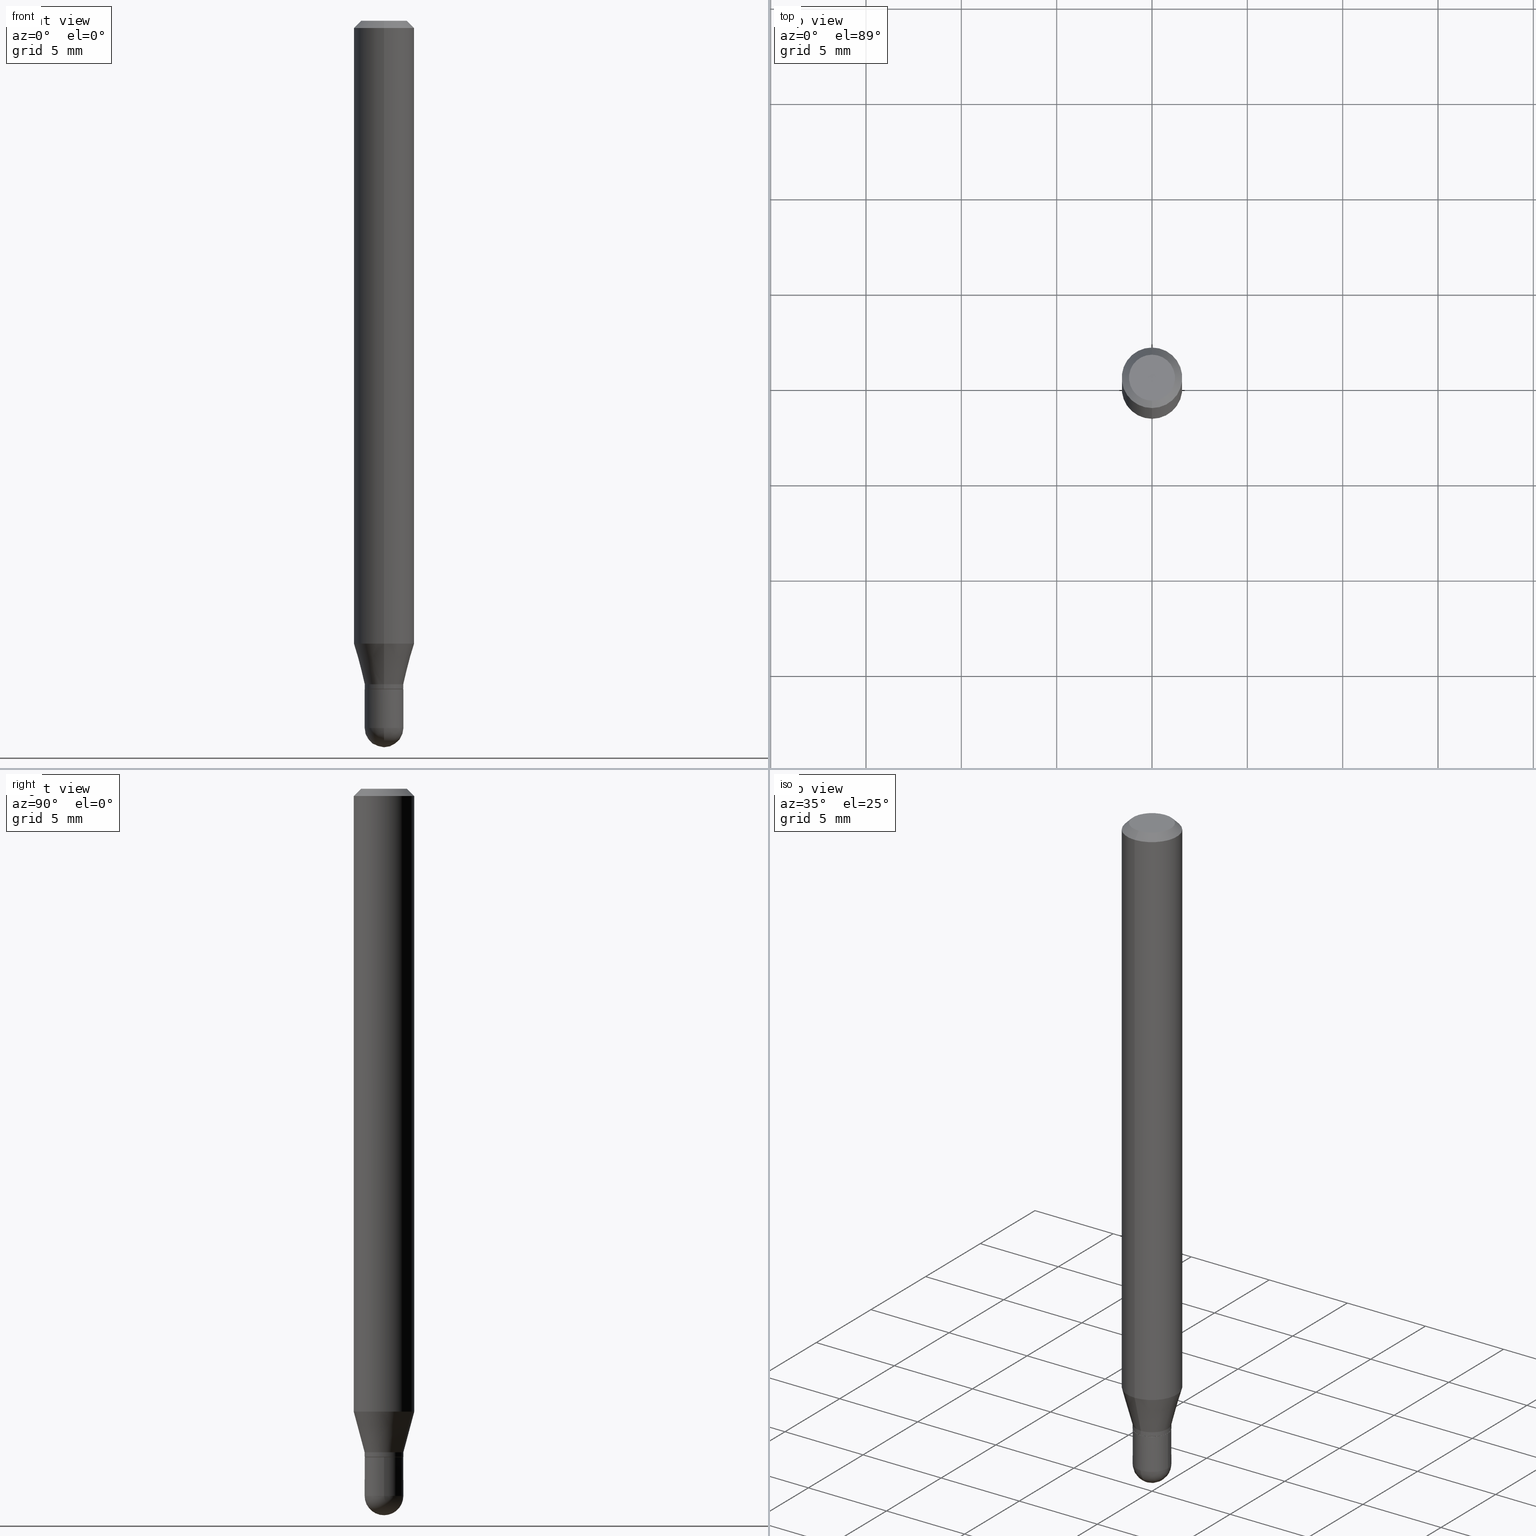
[diagram: canonical four-view strip — front | top / right | iso, engineering-drawing reading convention]
A machine part, canonical four-view strip (front | top / right | iso — engineering-drawing reading convention). The complete STEP part file that produces these views, byte-faithful:
ISO-10303-21;
HEADER;
FILE_DESCRIPTION (( 'STEP AP203' ),
    '1' );
FILE_NAME ('02528.STEP',
    '2024-03-07T20:15:36',
    ( '' ),
    ( '' ),
    'SwSTEP 2.0',
    'SolidWorks 2023',
    '' );
FILE_SCHEMA (( 'CONFIG_CONTROL_DESIGN' ));
ENDSEC;

DATA;
#1 = DIRECTION ( 'NONE',  ( -1.807323732225330534E-15, -0.2588190451025182415, 0.9659258262890689783 ) ) ;
#2 = ORIENTED_EDGE ( 'NONE', *, *, #462, .T. ) ;
#3 = ORIENTED_EDGE ( 'NONE', *, *, #195, .T. ) ;
#4 = COORDINATED_UNIVERSAL_TIME_OFFSET ( 5, 0, .BEHIND. ) ;
#5 = DIRECTION ( 'NONE',  ( -2.445468806185136597E-29, 3.491481338843145583E-15, 1.000000000000000000 ) ) ;
#6 = ORIENTED_EDGE ( 'NONE', *, *, #15, .T. ) ;
#7 = CIRCLE ( 'NONE', #372, 0.04000000000000000083 ) ;
#8 = CARTESIAN_POINT ( 'NONE',  ( 3.566963791873582281E-29, -5.102461341907582659E-15, -1.459999999999999964 ) ) ;
#9 = PERSON_AND_ORGANIZATION ( #234, #237 ) ;
#10 = EDGE_CURVE ( 'NONE', #263, #469, #211, .T. ) ;
#11 = DIRECTION ( 'NONE',  ( -2.445465007158633692E-29, 3.491486779265324816E-15, 1.000000000000000000 ) ) ;
#12 = CARTESIAN_POINT ( 'NONE',  ( 3.374741709878914377E-29, -4.818251755386149216E-15, -1.380000000000000115 ) ) ;
#13 = DIRECTION ( 'NONE',  ( -2.445465007158633692E-29, 3.491486779265324816E-15, 1.000000000000000000 ) ) ;
#14 = ORIENTED_EDGE ( 'NONE', *, *, #42, .F. ) ;
#15 = EDGE_CURVE ( 'NONE', #469, #183, #470, .T. ) ;
#16 = DIRECTION ( 'NONE',  ( -6.982962677686265133E-15, -1.000000000000000000, 6.829619984160670865E-15 ) ) ;
#17 = AXIS2_PLACEMENT_3D ( 'NONE', #445, #217, #355 ) ;
#18 = CONICAL_SURFACE ( 'NONE', #26, 0.06250000000000000000, 0.7853981633974483900 ) ;
#19 = ORIENTED_EDGE ( 'NONE', *, *, #471, .T. ) ;
#20 = PRODUCT_RELATED_PRODUCT_CATEGORY ( 'detail', '', ( #448 ) ) ;
#21 = DIRECTION ( 'NONE',  ( -6.982962677686265922E-15, -1.000000000000000000, 0.000000000000000000 ) ) ;
#22 = ORIENTED_EDGE ( 'NONE', *, *, #200, .F. ) ;
#23 = FACE_OUTER_BOUND ( 'NONE', #510, .T. ) ;
#24 = LINE ( 'NONE', #338, #96 ) ;
#25 = EDGE_CURVE ( 'NONE', #368, #127, #261, .T. ) ;
#26 = AXIS2_PLACEMENT_3D ( 'NONE', #174, #408, #493 ) ;
#27 = DIRECTION ( 'NONE',  ( -6.982962677686265922E-15, -1.000000000000000000, 4.370956789862821150E-15 ) ) ;
#28 = DIRECTION ( 'NONE',  ( 6.982962677686265922E-15, 1.000000000000000000, -3.483106191921935554E-15 ) ) ;
#29 = ADVANCED_BREP_SHAPE_REPRESENTATION ( '02528', ( #198, #360, #294 ), #487 ) ;
#30 = CYLINDRICAL_SURFACE ( 'NONE', #411, 0.06250000000000000000 ) ;
#31 = EDGE_CURVE ( 'NONE', #263, #181, #326, .T. ) ;
#32 =( NAMED_UNIT ( * ) PLANE_ANGLE_UNIT ( ) SI_UNIT ( $, .RADIAN. ) );
#33 = CARTESIAN_POINT ( 'NONE',  ( -0.04000000000000000083, 2.842170943040400803E-16, -1.967574036101962509E-30 ) ) ;
#34 = CIRCLE ( 'NONE', #94, 0.04000000000000000083 ) ;
#35 = DIRECTION ( 'NONE',  ( -6.982962677686265133E-15, -1.000000000000000000, 6.829619984160670865E-15 ) ) ;
#36 = EDGE_CURVE ( 'NONE', #38, #63, #287, .T. ) ;
#37 = VECTOR ( 'NONE', #176, 39.37007874015748143 ) ;
#38 = VERTEX_POINT ( 'NONE', #155 ) ;
#39 = CARTESIAN_POINT ( 'NONE',  ( 0.000000000000000000, 0.000000000000000000, 0.000000000000000000 ) ) ;
#40 = EDGE_LOOP ( 'NONE', ( #123, #308, #55, #478 ) ) ;
#41 = DIRECTION ( 'NONE',  ( -4.937700262164674260E-15, -0.7071067811865632269, 0.7071067811865319186 ) ) ;
#42 = EDGE_CURVE ( 'NONE', #491, #256, #7, .T. ) ;
#43 = ORIENTED_EDGE ( 'NONE', *, *, #377, .T. ) ;
#44 = CC_DESIGN_PERSON_AND_ORGANIZATION_ASSIGNMENT ( #235, #281, ( #465 ) ) ;
#45 = ORIENTED_EDGE ( 'NONE', *, *, #200, .T. ) ;
#46 = VERTEX_POINT ( 'NONE', #152 ) ;
#47 = APPROVAL_ROLE ( '' ) ;
#48 = LINE ( 'NONE', #363, #148 ) ;
#49 = EDGE_CURVE ( 'NONE', #127, #38, #511, .T. ) ;
#50 = DIRECTION ( 'NONE',  ( -6.982962677686265922E-15, -1.000000000000000000, 3.491486779265324816E-15 ) ) ;
#51 = DATE_TIME_ROLE ( 'creation_date' ) ;
#52 = VECTOR ( 'NONE', #161, 39.37007874015748143 ) ;
#53 = AXIS2_PLACEMENT_3D ( 'NONE', #93, #101, #291 ) ;
#54 = CARTESIAN_POINT ( 'NONE',  ( 3.641531520770834203E-16, 0.03999999999999514361, -1.370000000000000329 ) ) ;
#55 = ORIENTED_EDGE ( 'NONE', *, *, #296, .T. ) ;
#56 = CARTESIAN_POINT ( 'NONE',  ( 3.374746952535488593E-29, -4.818244247603541543E-15, -1.380000000000000115 ) ) ;
#57 = UNCERTAINTY_MEASURE_WITH_UNIT (LENGTH_MEASURE( 1.000000000000000082E-05 ), #111, 'distance_accuracy_value', 'NONE');
#58 = EDGE_LOOP ( 'NONE', ( #430, #362, #339, #136 ) ) ;
#59 = CARTESIAN_POINT ( 'NONE',  ( -3.773273898774340269E-16, -0.04749999999999999362, -1.623010672770032212E-16 ) ) ;
#60 = AXIS2_PLACEMENT_3D ( 'NONE', #74, #431, #504 ) ;
#61 = SECURITY_CLASSIFICATION ( '', '', #438 ) ;
#62 = CARTESIAN_POINT ( 'NONE',  ( 0.000000000000000000, 0.000000000000000000, 0.000000000000000000 ) ) ;
#63 = VERTEX_POINT ( 'NONE', #344 ) ;
#64 = DIRECTION ( 'NONE',  ( -2.445465007158633692E-29, 3.491486779265324816E-15, 1.000000000000000000 ) ) ;
#65 = ADVANCED_FACE ( 'NONE', ( #188 ), #253, .T. ) ;
#66 = DIRECTION ( 'NONE',  ( 1.000000000000000000, -7.105427357601001070E-15, 4.926315508542082329E-29 ) ) ;
#67 = AXIS2_PLACEMENT_3D ( 'NONE', #69, #222, #454 ) ;
#68 = EDGE_LOOP ( 'NONE', ( #98, #154, #187, #19 ) ) ;
#69 = CARTESIAN_POINT ( 'NONE',  ( 0.000000000000000000, 0.000000000000000000, 0.000000000000000000 ) ) ;
#70 =( LENGTH_UNIT ( ) NAMED_UNIT ( * ) SI_UNIT ( $, .METRE. ) );
#71 = EDGE_LOOP ( 'NONE', ( #305, #3, #43, #115 ) ) ;
#72 = VECTOR ( 'NONE', #286, 39.37007874015748143 ) ;
#73 = AXIS2_PLACEMENT_3D ( 'NONE', #8, #318, #122 ) ;
#74 = CARTESIAN_POINT ( 'NONE',  ( 0.000000000000000000, 0.000000000000000000, 0.000000000000000000 ) ) ;
#75 = APPROVAL_STATUS ( 'not_yet_approved' ) ;
#76 = DIRECTION ( 'NONE',  ( -6.982962677686265922E-15, -1.000000000000000000, 3.491486779265324816E-15 ) ) ;
#77 = AXIS2_PLACEMENT_3D ( 'NONE', #316, #210, #169 ) ;
#78 = AXIS2_PLACEMENT_3D ( 'NONE', #167, #321, #480 ) ;
#79 = APPROVAL_STATUS ( 'not_yet_approved' ) ;
#80 = ORIENTED_EDGE ( 'NONE', *, *, #258, .F. ) ;
#81 = CARTESIAN_POINT ( 'NONE',  ( 3.374741709878914377E-29, -4.818251755386149216E-15, -1.380000000000000115 ) ) ;
#82 = EDGE_CURVE ( 'NONE', #368, #63, #300, .T. ) ;
#83 = DIRECTION ( 'NONE',  ( -2.445465007158633411E-29, 3.491486779265324816E-15, 1.000000000000000000 ) ) ;
#84 = EDGE_CURVE ( 'NONE', #375, #102, #380, .T. ) ;
#85 = DATE_AND_TIME ( #512, #303 ) ;
#86 = DIRECTION ( 'NONE',  ( -2.445465007158633692E-29, 3.491486779265324816E-15, 1.000000000000000000 ) ) ;
#87 = DATE_AND_TIME ( #479, #254 ) ;
#88 = AXIS2_PLACEMENT_3D ( 'NONE', #39, #156, #423 ) ;
#89 = CARTESIAN_POINT ( 'NONE',  ( -2.758270257685737501E-16, -0.03950000000000481598, -1.379999999999999671 ) ) ;
#90 = ORIENTED_EDGE ( 'NONE', *, *, #84, .T. ) ;
#91 = DIRECTION ( 'NONE',  ( -1.000000000000000000, 6.982962677686265922E-15, -4.876176775795935793E-29 ) ) ;
#92 = DIRECTION ( 'NONE',  ( -2.445468806185136877E-29, 3.491481338843145188E-15, 1.000000000000000000 ) ) ;
#93 = CARTESIAN_POINT ( 'NONE',  ( 3.374741709878914377E-29, -4.818251755386149216E-15, -1.380000000000000115 ) ) ;
#94 = AXIS2_PLACEMENT_3D ( 'NONE', #56, #134, #171 ) ;
#95 = CARTESIAN_POINT ( 'NONE',  ( -0.04000000000000000083, -4.673686406853227813E-15, -1.460000000000000187 ) ) ;
#96 = VECTOR ( 'NONE', #419, 39.37007874015748143 ) ;
#97 = APPROVAL_PERSON_ORGANIZATION ( #9, #218, #213 ) ;
#98 = ORIENTED_EDGE ( 'NONE', *, *, #195, .F. ) ;
#99 = FACE_OUTER_BOUND ( 'NONE', #58, .T. ) ;
#100 = ORIENTED_EDGE ( 'NONE', *, *, #429, .F. ) ;
#101 = DIRECTION ( 'NONE',  ( -2.445465007158633692E-29, 3.491486779265324816E-15, 1.000000000000000000 ) ) ;
#102 = VERTEX_POINT ( 'NONE', #179 ) ;
#103 = EDGE_CURVE ( 'NONE', #256, #117, #457, .T. ) ;
#104 = CARTESIAN_POINT ( 'NONE',  ( 3.350287059807328626E-29, -4.783336887593495309E-15, -1.370000000000000107 ) ) ;
#105 = CARTESIAN_POINT ( 'NONE',  ( 3.570384457030299835E-29, -5.097562754710993947E-15, -1.460000000000000187 ) ) ;
#106 = VECTOR ( 'NONE', #229, 39.37007874015748143 ) ;
#107 = CIRCLE ( 'NONE', #436, 0.06250000000000000000 ) ;
#108 = CARTESIAN_POINT ( 'NONE',  ( 3.316907271900976096E-16, 0.04749999999999999362, -3.299189666611560624E-16 ) ) ;
#109 = APPROVAL ( #482, 'UNSPECIFIED' ) ;
#110 = ORIENTED_EDGE ( 'NONE', *, *, #177, .T. ) ;
#111 =( CONVERSION_BASED_UNIT ( 'INCH', #387 ) LENGTH_UNIT ( ) NAMED_UNIT ( #329 ) );
#112 = AXIS2_PLACEMENT_3D ( 'NONE', #245, #476, #483 ) ;
#113 = ADVANCED_FACE ( 'NONE', ( #246 ), #126, .T. ) ;
#114 = AXIS2_PLACEMENT_3D ( 'NONE', #62, #178, #391 ) ;
#115 = ORIENTED_EDGE ( 'NONE', *, *, #214, .F. ) ;
#116 = DIRECTION ( 'NONE',  ( -6.982962677686265922E-15, -1.000000000000000000, 3.483106191921935554E-15 ) ) ;
#117 = VERTEX_POINT ( 'NONE', #119 ) ;
#118 = ORIENTED_EDGE ( 'NONE', *, *, #324, .F. ) ;
#119 = CARTESIAN_POINT ( 'NONE',  ( 2.842170943040764665E-16, 0.03999999999999499789, -1.460000000000000631 ) ) ;
#120 = AXIS2_PLACEMENT_3D ( 'NONE', #405, #11, #130 ) ;
#121 = ADVANCED_FACE ( 'NONE', ( #215 ), #182, .T. ) ;
#122 = DIRECTION ( 'NONE',  ( -6.982962677686265133E-15, -1.000000000000000000, 6.829619984160622745E-15 ) ) ;
#123 = ORIENTED_EDGE ( 'NONE', *, *, #462, .F. ) ;
#124 = PERSON_AND_ORGANIZATION_ROLE ( 'creator' ) ;
#125 = ORIENTED_EDGE ( 'NONE', *, *, #336, .T. ) ;
#126 = SPHERICAL_SURFACE ( 'NONE', #17, 0.04000000000000020206 ) ;
#127 = VERTEX_POINT ( 'NONE', #89 ) ;
#128 = EDGE_CURVE ( 'NONE', #349, #194, #301, .T. ) ;
#129 = PERSON_AND_ORGANIZATION ( #234, #237 ) ;
#130 = DIRECTION ( 'NONE',  ( -6.982962677686265133E-15, -1.000000000000000000, 6.829619984160670865E-15 ) ) ;
#131 = ORIENTED_EDGE ( 'NONE', *, *, #49, .T. ) ;
#132 = CALENDAR_DATE ( 2024, 7, 3 ) ;
#133 = AXIS2_PLACEMENT_3D ( 'NONE', #374, #370, #27 ) ;
#134 = DIRECTION ( 'NONE',  ( -2.445468806185136597E-29, 3.491481338843145583E-15, 1.000000000000000000 ) ) ;
#135 = CARTESIAN_POINT ( 'NONE',  ( 3.374741709878914377E-29, -4.818251755386149216E-15, -1.380000000000000115 ) ) ;
#136 = ORIENTED_EDGE ( 'NONE', *, *, #15, .F. ) ;
#137 = CARTESIAN_POINT ( 'NONE',  ( 2.824407374646732069E-16, 0.03949999999999518480, -1.380000000000000338 ) ) ;
#138 = ORIENTED_EDGE ( 'NONE', *, *, #49, .F. ) ;
#139 = DIRECTION ( 'NONE',  ( -6.982962677686265922E-15, -1.000000000000000000, 4.370956789862821150E-15 ) ) ;
#140 = CIRCLE ( 'NONE', #382, 0.04000000000000000083 ) ;
#141 = CARTESIAN_POINT ( 'NONE',  ( 8.024712458788022514E-45, -1.145719827323074954E-30, -3.281466892921061726E-16 ) ) ;
#142 = DIRECTION ( 'NONE',  ( -6.982962677686265922E-15, -1.000000000000000000, 3.483106191921935554E-15 ) ) ;
#143 = EDGE_CURVE ( 'NONE', #469, #263, #435, .T. ) ;
#144 = CYLINDRICAL_SURFACE ( 'NONE', #244, 0.03999999999999992450 ) ;
#145 = EDGE_LOOP ( 'NONE', ( #364, #381, #131, #100 ) ) ;
#146 = DIRECTION ( 'NONE',  ( -2.445468806185136597E-29, 3.491481338843145583E-15, 1.000000000000000000 ) ) ;
#147 = DIRECTION ( 'NONE',  ( 2.445465007158633692E-29, -3.491486779265324816E-15, -1.000000000000000000 ) ) ;
#148 = VECTOR ( 'NONE', #358, 39.37007874015748143 ) ;
#149 = CIRCLE ( 'NONE', #425, 0.04749999999999999362 ) ;
#150 = LOCAL_TIME ( 15, 15, 36.00000000000000000, #242 ) ;
#151 = CARTESIAN_POINT ( 'NONE',  ( -2.793185071074166094E-16, -0.04000000000000470540, -1.369999999999999885 ) ) ;
#152 = CARTESIAN_POINT ( 'NONE',  ( 3.663072211542629124E-29, -5.244569889059603611E-15, -1.500000000000000222 ) ) ;
#153 = EDGE_CURVE ( 'NONE', #117, #375, #446, .T. ) ;
#154 = ORIENTED_EDGE ( 'NONE', *, *, #289, .F. ) ;
#155 = CARTESIAN_POINT ( 'NONE',  ( -2.793185071074153768E-16, -0.04000000000000460132, -1.379499999999999948 ) ) ;
#156 = DIRECTION ( 'NONE',  ( -2.445465007158633692E-29, 3.491486779265324816E-15, 1.000000000000000000 ) ) ;
#157 = ORIENTED_EDGE ( 'NONE', *, *, #304, .T. ) ;
#158 = AXIS2_PLACEMENT_3D ( 'NONE', #416, #251, #21 ) ;
#159 = FACE_OUTER_BOUND ( 'NONE', #484, .T. ) ;
#160 = CC_DESIGN_PERSON_AND_ORGANIZATION_ASSIGNMENT ( #306, #463, ( #448 ) ) ;
#161 = DIRECTION ( 'NONE',  ( 4.937700262164548042E-15, 0.7071067811865451302, -0.7071067811865499042 ) ) ;
#162 = ORIENTED_EDGE ( 'NONE', *, *, #324, .T. ) ;
#163 = SHAPE_DEFINITION_REPRESENTATION ( #314, #29 ) ;
#164 = DIRECTION ( 'NONE',  ( 2.438088387897960049E-29, -3.491481338843145188E-15, -1.000000000000000000 ) ) ;
#165 = DIRECTION ( 'NONE',  ( -2.445468806185136597E-29, 3.491481338843145583E-15, 1.000000000000000000 ) ) ;
#166 = AXIS2_PLACEMENT_3D ( 'NONE', #108, #228, #272 ) ;
#167 = CARTESIAN_POINT ( 'NONE',  ( 3.374746952535488593E-29, -4.818244247603541543E-15, -1.380000000000000115 ) ) ;
#168 = PERSON_AND_ORGANIZATION_ROLE ( 'classification_officer' ) ;
#169 = DIRECTION ( 'NONE',  ( 1.000000000000000000, -6.982962677686259611E-15, 0.000000000000000000 ) ) ;
#170 = CALENDAR_DATE ( 2024, 7, 3 ) ;
#171 = DIRECTION ( 'NONE',  ( 1.000000000000000000, -6.982962677686259611E-15, 0.000000000000000000 ) ) ;
#172 = DIRECTION ( 'NONE',  ( -6.982962677686265133E-15, -1.000000000000000000, 6.916070870036109544E-15 ) ) ;
#173 = EDGE_LOOP ( 'NONE', ( #341, #451 ) ) ;
#174 = CARTESIAN_POINT ( 'NONE',  ( 3.668197510738031270E-31, -5.237230168898101436E-17, -0.01500000000000032904 ) ) ;
#175 = EDGE_CURVE ( 'NONE', #256, #180, #48, .T. ) ;
#176 = DIRECTION ( 'NONE',  ( -2.445465007158633692E-29, 3.491486779265324816E-15, 1.000000000000000000 ) ) ;
#177 = EDGE_CURVE ( 'NONE', #180, #102, #34, .T. ) ;
#178 = DIRECTION ( 'NONE',  ( -2.445468806185136597E-29, 3.491481338843145583E-15, 1.000000000000000000 ) ) ;
#179 = CARTESIAN_POINT ( 'NONE',  ( -0.04000000000000000083, -4.673686406853227813E-15, -1.380000000000000115 ) ) ;
#180 = VERTEX_POINT ( 'NONE', #447 ) ;
#181 = VERTEX_POINT ( 'NONE', #325 ) ;
#182 = CONICAL_SURFACE ( 'NONE', #424, 0.03950000000000000039, 0.7853981633974739252 ) ;
#183 = VERTEX_POINT ( 'NONE', #485 ) ;
#184 = DIRECTION ( 'NONE',  ( -2.445465007158633692E-29, 3.491486779265324816E-15, 1.000000000000000000 ) ) ;
#185 = ORIENTED_EDGE ( 'NONE', *, *, #377, .F. ) ;
#186 = DIRECTION ( 'NONE',  ( -6.982962677686266711E-15, -1.000000000000000000, 3.491486779265325210E-15 ) ) ;
#187 = ORIENTED_EDGE ( 'NONE', *, *, #214, .T. ) ;
#188 = FACE_OUTER_BOUND ( 'NONE', #68, .T. ) ;
#189 = CARTESIAN_POINT ( 'NONE',  ( 2.842170943040394886E-16, 0.03999999999999992450, -1.396594711706127185E-16 ) ) ;
#190 = CONICAL_SURFACE ( 'NONE', #383, 0.03999999999999992450, 0.2617993877991502960 ) ;
#191 = AXIS2_PLACEMENT_3D ( 'NONE', #219, #293, #452 ) ;
#192 = APPROVAL_PERSON_ORGANIZATION ( #322, #109, #47 ) ;
#193 =( NAMED_UNIT ( * ) SI_UNIT ( $, .STERADIAN. ) SOLID_ANGLE_UNIT ( ) );
#194 = VERTEX_POINT ( 'NONE', #277 ) ;
#195 = EDGE_CURVE ( 'NONE', #349, #420, #216, .T. ) ;
#196 = FACE_OUTER_BOUND ( 'NONE', #40, .T. ) ;
#197 = APPLICATION_CONTEXT ( 'configuration controlled 3d designs of mechanical parts and assemblies' ) ;
#198 = MANIFOLD_SOLID_BREP ( 'Body-Move/Copy2[1]', #310 ) ;
#199 = APPROVAL_ROLE ( '' ) ;
#200 = EDGE_CURVE ( 'NONE', #375, #491, #140, .T. ) ;
#201 = AXIS2_PLACEMENT_3D ( 'NONE', #135, #13, #172 ) ;
#202 = CIRCLE ( 'NONE', #158, 0.04000000000000020206 ) ;
#203 = ORIENTED_EDGE ( 'NONE', *, *, #359, .T. ) ;
#204 = PERSON_AND_ORGANIZATION_ROLE ( 'creator' ) ;
#205 = ADVANCED_FACE ( 'NONE', ( #275 ), #290, .F. ) ;
#206 = ORIENTED_EDGE ( 'NONE', *, *, #296, .F. ) ;
#207 = VERTEX_POINT ( 'NONE', #323 ) ;
#208 = DATE_AND_TIME ( #132, #150 ) ;
#209 = DIRECTION ( 'NONE',  ( 1.000000000000000000, -6.982962677686259611E-15, 0.000000000000000000 ) ) ;
#210 = DIRECTION ( 'NONE',  ( -2.445468806185136597E-29, 3.491481338843145583E-15, 1.000000000000000000 ) ) ;
#211 = CIRCLE ( 'NONE', #410, 0.03999999999999992450 ) ;
#212 = CONICAL_SURFACE ( 'NONE', #402, 0.03999999999999992450, 0.2617993877991502960 ) ;
#213 = APPROVAL_ROLE ( '' ) ;
#214 = EDGE_CURVE ( 'NONE', #194, #207, #249, .T. ) ;
#215 = FACE_OUTER_BOUND ( 'NONE', #145, .T. ) ;
#216 = LINE ( 'NONE', #282, #268 ) ;
#217 = DIRECTION ( 'NONE',  ( 1.000000000000000000, -6.982962677686265133E-15, 4.883557194083112901E-29 ) ) ;
#218 = APPROVAL ( #79, 'UNSPECIFIED' ) ;
#219 = CARTESIAN_POINT ( 'NONE',  ( 3.373518977375335454E-29, -4.816506011996516797E-15, -1.379500000000000171 ) ) ;
#220 = ORIENTED_EDGE ( 'NONE', *, *, #36, .F. ) ;
#221 = ADVANCED_FACE ( 'NONE', ( #472 ), #397, .T. ) ;
#222 = DIRECTION ( 'NONE',  ( -2.445468806185136597E-29, 3.491481338843145583E-15, 1.000000000000000000 ) ) ;
#223 = LINE ( 'NONE', #225, #276 ) ;
#224 = VECTOR ( 'NONE', #1, 39.37007874015748143 ) ;
#225 = CARTESIAN_POINT ( 'NONE',  ( 4.440892098500625669E-16, 0.06250000000000000000, -2.182179237040828010E-16 ) ) ;
#226 = CIRCLE ( 'NONE', #191, 0.03999999999999992450 ) ;
#227 = CARTESIAN_POINT ( 'NONE',  ( 0.000000000000000000, 0.000000000000000000, 0.000000000000000000 ) ) ;
#228 = DIRECTION ( 'NONE',  ( 2.445465007158633411E-29, -3.491486779265324816E-15, -1.000000000000000000 ) ) ;
#229 = DIRECTION ( 'NONE',  ( 5.024295867788190974E-15, 0.7071067811865681119, 0.7071067811865270336 ) ) ;
#230 = ADVANCED_FACE ( 'NONE', ( #240 ), #437, .F. ) ;
#231 = ORIENTED_EDGE ( 'NONE', *, *, #36, .T. ) ;
#232 = DIRECTION ( 'NONE',  ( -2.445465007158633692E-29, 3.491486779265324816E-15, 1.000000000000000000 ) ) ;
#233 = APPLICATION_PROTOCOL_DEFINITION ( 'international standard', 'config_control_design', 1994, #441 ) ;
#234 = PERSON ( 'UNSPECIFIED', 'UNSPECIFIED', 'UNSPECIFIED', ('UNSPECIFIED'), ('UNSPECIFIED'), ('UNSPECIFIED') ) ;
#235 = PERSON_AND_ORGANIZATION ( #234, #237 ) ;
#236 = DIRECTION ( 'NONE',  ( -2.445465007158633692E-29, 3.491486779265324816E-15, 1.000000000000000000 ) ) ;
#237 = ORGANIZATION ( 'UNSPECIFIED', 'UNSPECIFIED', '' ) ;
#238 = COORDINATED_UNIVERSAL_TIME_OFFSET ( 5, 0, .BEHIND. ) ;
#239 = CARTESIAN_POINT ( 'NONE',  ( 3.570384457030299835E-29, -5.097562754710993947E-15, -1.460000000000000187 ) ) ;
#240 = FACE_OUTER_BOUND ( 'NONE', #313, .T. ) ;
#241 = EDGE_CURVE ( 'NONE', #102, #180, #288, .T. ) ;
#242 = COORDINATED_UNIVERSAL_TIME_OFFSET ( 5, 0, .BEHIND. ) ;
#243 = CARTESIAN_POINT ( 'NONE',  ( 3.374741709878914377E-29, -4.818251755386149216E-15, -1.380000000000000115 ) ) ;
#244 = AXIS2_PLACEMENT_3D ( 'NONE', #227, #297, #259 ) ;
#245 = CARTESIAN_POINT ( 'NONE',  ( 8.024712458788022514E-45, -1.145719827323074954E-30, -3.281466892921061726E-16 ) ) ;
#246 = FACE_OUTER_BOUND ( 'NONE', #442, .T. ) ;
#247 = ORIENTED_EDGE ( 'NONE', *, *, #471, .F. ) ;
#248 = EDGE_LOOP ( 'NONE', ( #343, #45, #428, #315, #388 ) ) ;
#249 = LINE ( 'NONE', #407, #52 ) ;
#250 = APPROVAL ( #75, 'UNSPECIFIED' ) ;
#251 = DIRECTION ( 'NONE',  ( -1.000000000000000000, 6.982962677686265922E-15, -4.883557194083112340E-29 ) ) ;
#252 = ORIENTED_EDGE ( 'NONE', *, *, #427, .T. ) ;
#253 = CONICAL_SURFACE ( 'NONE', #393, 0.06250000000000000000, 0.7853981633974483900 ) ;
#254 = LOCAL_TIME ( 15, 15, 36.00000000000000000, #238 ) ;
#255 = FACE_OUTER_BOUND ( 'NONE', #502, .T. ) ;
#256 = VERTEX_POINT ( 'NONE', #440 ) ;
#257 = CARTESIAN_POINT ( 'NONE',  ( 3.566963791873582281E-29, -5.102461341907582659E-15, -1.459999999999999964 ) ) ;
#258 = EDGE_CURVE ( 'NONE', #127, #368, #365, .T. ) ;
#259 = DIRECTION ( 'NONE',  ( -6.982962677686265133E-15, -1.000000000000000000, 3.491486779265324421E-15 ) ) ;
#260 = CARTESIAN_POINT ( 'NONE',  ( 3.570384457030299835E-29, -5.097562754710993947E-15, -1.460000000000000187 ) ) ;
#261 = CIRCLE ( 'NONE', #201, 0.03950000000000000039 ) ;
#262 = DIRECTION ( 'NONE',  ( 7.105427357601000281E-15, 1.000000000000000000, 0.000000000000000000 ) ) ;
#263 = VERTEX_POINT ( 'NONE', #54 ) ;
#264 = AXIS2_PLACEMENT_3D ( 'NONE', #243, #86, #401 ) ;
#265 = CARTESIAN_POINT ( 'NONE',  ( 0.000000000000000000, 0.000000000000000000, 0.000000000000000000 ) ) ;
#266 = DIRECTION ( 'NONE',  ( 1.000000000000000000, 0.000000000000000000, 0.000000000000000000 ) ) ;
#267 = DIRECTION ( 'NONE',  ( -2.445465007158633692E-29, 3.491486779265324816E-15, 1.000000000000000000 ) ) ;
#268 = VECTOR ( 'NONE', #353, 39.37007874015748143 ) ;
#269 = CIRCLE ( 'NONE', #334, 0.06250000000000000000 ) ;
#270 = ADVANCED_FACE ( 'NONE', ( #414 ), #190, .T. ) ;
#271 = PERSON_AND_ORGANIZATION ( #234, #237 ) ;
#272 = DIRECTION ( 'NONE',  ( 6.982962677686265922E-15, 1.000000000000000000, -3.491486779265324816E-15 ) ) ;
#273 = ORIENTED_EDGE ( 'NONE', *, *, #143, .F. ) ;
#274 = ORIENTED_EDGE ( 'NONE', *, *, #175, .F. ) ;
#275 = FACE_OUTER_BOUND ( 'NONE', #464, .T. ) ;
#276 = VECTOR ( 'NONE', #456, 39.37007874015748143 ) ;
#277 = CARTESIAN_POINT ( 'NONE',  ( 3.840629472727447874E-16, 0.04749999999999999362, -4.939923113072091241E-16 ) ) ;
#278 = ADVANCED_FACE ( 'NONE', ( #495 ), #18, .T. ) ;
#279 = DIRECTION ( 'NONE',  ( -2.445465007158633692E-29, 3.491486779265324816E-15, 1.000000000000000000 ) ) ;
#280 = EDGE_LOOP ( 'NONE', ( #231, #2, #273, #206 ) ) ;
#281 = PERSON_AND_ORGANIZATION_ROLE ( 'design_supplier' ) ;
#282 = CARTESIAN_POINT ( 'NONE',  ( -4.287811248607203282E-16, -0.06250000000000005551, -0.01500000000000011047 ) ) ;
#283 = EDGE_LOOP ( 'NONE', ( #460, #162, #409, #247 ) ) ;
#284 = CALENDAR_DATE ( 2024, 7, 3 ) ;
#285 = DIRECTION ( 'NONE',  ( -6.982962677686265133E-15, -1.000000000000000000, 6.916070870036109544E-15 ) ) ;
#286 = DIRECTION ( 'NONE',  ( 1.839019923739600710E-15, 0.2588190451025250138, 0.9659258262890670910 ) ) ;
#287 = CIRCLE ( 'NONE', #474, 0.03999999999999992450 ) ;
#288 = CIRCLE ( 'NONE', #78, 0.04000000000000000083 ) ;
#289 = EDGE_CURVE ( 'NONE', #194, #349, #149, .T. ) ;
#290 = PLANE ( 'NONE',  #496 ) ;
#291 = DIRECTION ( 'NONE',  ( -6.982962677686265133E-15, -1.000000000000000000, 6.916070870036109544E-15 ) ) ;
#292 = DIRECTION ( 'NONE',  ( 1.000000000000000000, -6.982962677686259611E-15, 0.000000000000000000 ) ) ;
#293 = DIRECTION ( 'NONE',  ( -2.445465007158633692E-29, 3.491486779265324816E-15, 1.000000000000000000 ) ) ;
#294 = AXIS2_PLACEMENT_3D ( 'NONE', #461, #506, #266 ) ;
#295 = FACE_OUTER_BOUND ( 'NONE', #248, .T. ) ;
#296 = EDGE_CURVE ( 'NONE', #38, #469, #366, .T. ) ;
#297 = DIRECTION ( 'NONE',  ( -2.445465007158633692E-29, 3.491486779265324816E-15, 1.000000000000000000 ) ) ;
#298 = CARTESIAN_POINT ( 'NONE',  ( 3.668197510738031270E-31, -5.237230168898101436E-17, -0.01500000000000032904 ) ) ;
#299 = CARTESIAN_POINT ( 'NONE',  ( 3.350287059807328626E-29, -4.783336887593495309E-15, -1.370000000000000107 ) ) ;
#300 = LINE ( 'NONE', #459, #106 ) ;
#301 = CIRCLE ( 'NONE', #112, 0.04749999999999999362 ) ;
#302 = CYLINDRICAL_SURFACE ( 'NONE', #60, 0.03999999999999992450 ) ;
#303 = LOCAL_TIME ( 15, 15, 36.00000000000000000, #347 ) ;
#304 = EDGE_CURVE ( 'NONE', #181, #207, #223, .T. ) ;
#305 = ORIENTED_EDGE ( 'NONE', *, *, #128, .F. ) ;
#306 = PERSON_AND_ORGANIZATION ( #234, #237 ) ;
#307 = CARTESIAN_POINT ( 'NONE',  ( 3.373518977375335454E-29, -4.816506011996516797E-15, -1.379500000000000171 ) ) ;
#308 = ORIENTED_EDGE ( 'NONE', *, *, #429, .T. ) ;
#309 = CARTESIAN_POINT ( 'NONE',  ( 3.668197510738031270E-31, -5.237230168898101436E-17, -0.01500000000000032904 ) ) ;
#310 = CLOSED_SHELL ( 'NONE', ( #432, #221, #205, #113, #345 ) ) ;
#311 = EDGE_LOOP ( 'NONE', ( #317, #125, #367, #14 ) ) ;
#312 = CC_DESIGN_PERSON_AND_ORGANIZATION_ASSIGNMENT ( #129, #168, ( #61 ) ) ;
#313 = EDGE_LOOP ( 'NONE', ( #80, #385 ) ) ;
#314 = PRODUCT_DEFINITION_SHAPE ( 'NONE', 'NONE',  #395 ) ;
#315 = ORIENTED_EDGE ( 'NONE', *, *, #175, .T. ) ;
#316 = CARTESIAN_POINT ( 'NONE',  ( 3.570384457030299835E-29, -5.097562754710993947E-15, -1.460000000000000187 ) ) ;
#317 = ORIENTED_EDGE ( 'NONE', *, *, #427, .F. ) ;
#318 = DIRECTION ( 'NONE',  ( 1.000000000000000000, -6.982962677686265133E-15, 4.883557194083112901E-29 ) ) ;
#319 = CLOSED_SHELL ( 'NONE', ( #398, #415, #278, #443, #332, #270, #492, #65, #509, #230, #121, #481 ) ) ;
#320 = CIRCLE ( 'NONE', #497, 0.04000000000000020206 ) ;
#321 = DIRECTION ( 'NONE',  ( -2.445468806185136597E-29, 3.491481338843145583E-15, 1.000000000000000000 ) ) ;
#322 = PERSON_AND_ORGANIZATION ( #234, #237 ) ;
#323 = CARTESIAN_POINT ( 'NONE',  ( 4.440892098500941706E-16, 0.06249999999999995143, -0.01500000000000054588 ) ) ;
#324 = EDGE_CURVE ( 'NONE', #181, #183, #107, .T. ) ;
#325 = CARTESIAN_POINT ( 'NONE',  ( 4.440892098500941706E-16, 0.06249999999999554523, -1.286028856829700695 ) ) ;
#326 = LINE ( 'NONE', #486, #72 ) ;
#327 = VECTOR ( 'NONE', #41, 39.37007874015748143 ) ;
#328 = CARTESIAN_POINT ( 'NONE',  ( 3.144938567573252550E-29, -4.490152751374598904E-15, -1.286028856829700473 ) ) ;
#329 = DIMENSIONAL_EXPONENTS ( 1.000000000000000000, 0.000000000000000000, 0.000000000000000000, 0.000000000000000000, 0.000000000000000000, 0.000000000000000000, 0.000000000000000000 ) ;
#330 = CARTESIAN_POINT ( 'NONE',  ( -4.364351673553912750E-16, -0.06250000000000005551, -0.01500000000000011047 ) ) ;
#331 = CARTESIAN_POINT ( 'NONE',  ( -2.793185071074500866E-16, -0.03999999999999992450, 1.396594711706127185E-16 ) ) ;
#332 = ADVANCED_FACE ( 'NONE', ( #99 ), #212, .T. ) ;
#333 = VECTOR ( 'NONE', #92, 39.37007874015748143 ) ;
#334 = AXIS2_PLACEMENT_3D ( 'NONE', #335, #498, #142 ) ;
#335 = CARTESIAN_POINT ( 'NONE',  ( 3.668197510738031270E-31, -5.237230168898101436E-17, -0.01500000000000032904 ) ) ;
#336 = EDGE_CURVE ( 'NONE', #46, #117, #320, .T. ) ;
#337 = CARTESIAN_POINT ( 'NONE',  ( 3.350287059807328626E-29, -4.783336887593495309E-15, -1.370000000000000107 ) ) ;
#338 = CARTESIAN_POINT ( 'NONE',  ( -4.364351673553916201E-16, -0.06250000000000000000, 2.182179237040828010E-16 ) ) ;
#339 = ORIENTED_EDGE ( 'NONE', *, *, #359, .F. ) ;
#340 = DIRECTION ( 'NONE',  ( -2.445465007158633692E-29, 3.491486779265324816E-15, 1.000000000000000000 ) ) ;
#341 = ORIENTED_EDGE ( 'NONE', *, *, #289, .T. ) ;
#342 = CARTESIAN_POINT ( 'NONE',  ( -2.793185071074156233E-16, -0.04000000000000520500, -1.459999999999999964 ) ) ;
#343 = ORIENTED_EDGE ( 'NONE', *, *, #84, .F. ) ;
#344 = CARTESIAN_POINT ( 'NONE',  ( 2.842170943040741492E-16, 0.03999999999999524769, -1.379500000000000393 ) ) ;
#345 = ADVANCED_FACE ( 'NONE', ( #295 ), #490, .T. ) ;
#346 = DIRECTION ( 'NONE',  ( 1.000000000000000000, -6.982962677686259611E-15, 0.000000000000000000 ) ) ;
#347 = COORDINATED_UNIVERSAL_TIME_OFFSET ( 5, 0, .BEHIND. ) ;
#348 = LOCAL_TIME ( 15, 15, 36.00000000000000000, #396 ) ;
#349 = VERTEX_POINT ( 'NONE', #59 ) ;
#350 = APPROVAL_DATE_TIME ( #444, #218 ) ;
#351 = CC_DESIGN_DATE_AND_TIME_ASSIGNMENT ( #87, #51, ( #395 ) ) ;
#352 = PERSON_AND_ORGANIZATION ( #234, #237 ) ;
#353 = DIRECTION ( 'NONE',  ( -4.851104656540964275E-15, -0.7071067811865500152, -0.7071067811865450192 ) ) ;
#354 = DATE_TIME_ROLE ( 'classification_date' ) ;
#355 = DIRECTION ( 'NONE',  ( -6.982962677686265133E-15, -1.000000000000000000, 6.829619984160622745E-15 ) ) ;
#356 = AXIS2_PLACEMENT_3D ( 'NONE', #105, #165, #292 ) ;
#357 = APPROVAL_DATE_TIME ( #85, #250 ) ;
#358 = DIRECTION ( 'NONE',  ( -2.445468806185136877E-29, 3.491481338843145188E-15, 1.000000000000000000 ) ) ;
#359 = EDGE_CURVE ( 'NONE', #183, #181, #373, .T. ) ;
#360 = MANIFOLD_SOLID_BREP ( 'Body-Move/Copy2[2]', #319 ) ;
#361 = DIRECTION ( 'NONE',  ( -2.445465007158633692E-29, 3.491486779265324816E-15, 1.000000000000000000 ) ) ;
#362 = ORIENTED_EDGE ( 'NONE', *, *, #31, .T. ) ;
#363 = CARTESIAN_POINT ( 'NONE',  ( 0.04000000000000000083, -2.793185071074506290E-16, 1.950470710318374387E-30 ) ) ;
#364 = ORIENTED_EDGE ( 'NONE', *, *, #82, .F. ) ;
#365 = CIRCLE ( 'NONE', #264, 0.03950000000000000039 ) ;
#366 = LINE ( 'NONE', #331, #37 ) ;
#367 = ORIENTED_EDGE ( 'NONE', *, *, #103, .F. ) ;
#368 = VERTEX_POINT ( 'NONE', #137 ) ;
#369 = EDGE_CURVE ( 'NONE', #183, #420, #24, .T. ) ;
#370 = DIRECTION ( 'NONE',  ( -2.445465007158633692E-29, 3.491486779265324816E-15, 1.000000000000000000 ) ) ;
#371 = DIRECTION ( 'NONE',  ( -2.445465007158633692E-29, 3.491486779265324816E-15, 1.000000000000000000 ) ) ;
#372 = AXIS2_PLACEMENT_3D ( 'NONE', #260, #146, #346 ) ;
#373 = CIRCLE ( 'NONE', #133, 0.06250000000000000000 ) ;
#374 = CARTESIAN_POINT ( 'NONE',  ( 3.144938567573252550E-29, -4.490152751374598904E-15, -1.286028856829700473 ) ) ;
#375 = VERTEX_POINT ( 'NONE', #95 ) ;
#376 = ORIENTED_EDGE ( 'NONE', *, *, #153, .T. ) ;
#377 = EDGE_CURVE ( 'NONE', #420, #207, #269, .T. ) ;
#378 = CC_DESIGN_DATE_AND_TIME_ASSIGNMENT ( #208, #354, ( #61 ) ) ;
#379 = CYLINDRICAL_SURFACE ( 'NONE', #88, 0.06250000000000000000 ) ;
#380 = LINE ( 'NONE', #33, #333 ) ;
#381 = ORIENTED_EDGE ( 'NONE', *, *, #25, .T. ) ;
#382 = AXIS2_PLACEMENT_3D ( 'NONE', #239, #5, #209 ) ;
#383 = AXIS2_PLACEMENT_3D ( 'NONE', #299, #371, #449 ) ;
#384 = MECHANICAL_CONTEXT ( 'NONE', #441, 'mechanical' ) ;
#385 = ORIENTED_EDGE ( 'NONE', *, *, #25, .F. ) ;
#386 = CARTESIAN_POINT ( 'NONE',  ( -2.758270257685737501E-16, -0.03950000000000481598, -1.379999999999999671 ) ) ;
#387 = LENGTH_MEASURE_WITH_UNIT ( LENGTH_MEASURE( 0.02539999999999999897 ), #70 );
#388 = ORIENTED_EDGE ( 'NONE', *, *, #241, .F. ) ;
#389 = CARTESIAN_POINT ( 'NONE',  ( -2.793185071074166094E-16, -0.04000000000000470540, -1.369999999999999885 ) ) ;
#390 = ORIENTED_EDGE ( 'NONE', *, *, #369, .F. ) ;
#391 = DIRECTION ( 'NONE',  ( 1.000000000000000000, -6.982962677686265922E-15, 4.876176775795935793E-29 ) ) ;
#392 = DATE_AND_TIME ( #170, #467 ) ;
#393 = AXIS2_PLACEMENT_3D ( 'NONE', #298, #147, #28 ) ;
#394 = AXIS2_PLACEMENT_3D ( 'NONE', #309, #267, #116 ) ;
#395 = PRODUCT_DEFINITION ( 'UNKNOWN', '', #465, #439 ) ;
#396 = COORDINATED_UNIVERSAL_TIME_OFFSET ( 5, 0, .BEHIND. ) ;
#397 = SPHERICAL_SURFACE ( 'NONE', #73, 0.04000000000000020206 ) ;
#398 = ADVANCED_FACE ( 'NONE', ( #500 ), #144, .T. ) ;
#399 = CARTESIAN_POINT ( 'NONE',  ( 2.793185071074843528E-16, 0.03999999999999518524, -1.380000000000000338 ) ) ;
#400 = APPROVAL_DATE_TIME ( #392, #109 ) ;
#401 = DIRECTION ( 'NONE',  ( -6.982962677686265133E-15, -1.000000000000000000, 6.916070870036109544E-15 ) ) ;
#402 = AXIS2_PLACEMENT_3D ( 'NONE', #104, #184, #16 ) ;
#403 = CC_DESIGN_APPROVAL ( #109, ( #61 ) ) ;
#404 = EDGE_LOOP ( 'NONE', ( #494, #468, #6, #118 ) ) ;
#405 = CARTESIAN_POINT ( 'NONE',  ( 3.350287059807328626E-29, -4.783336887593495309E-15, -1.370000000000000107 ) ) ;
#406 = ORIENTED_EDGE ( 'NONE', *, *, #258, .T. ) ;
#407 = CARTESIAN_POINT ( 'NONE',  ( 4.364351673553919652E-16, 0.06249999999999995143, -0.01500000000000054588 ) ) ;
#408 = DIRECTION ( 'NONE',  ( 2.445465007158633692E-29, -3.491486779265324816E-15, -1.000000000000000000 ) ) ;
#409 = ORIENTED_EDGE ( 'NONE', *, *, #369, .T. ) ;
#410 = AXIS2_PLACEMENT_3D ( 'NONE', #337, #279, #505 ) ;
#411 = AXIS2_PLACEMENT_3D ( 'NONE', #265, #340, #76 ) ;
#412 = CC_DESIGN_APPROVAL ( #218, ( #465 ) ) ;
#413 = CYLINDRICAL_SURFACE ( 'NONE', #114, 0.04000000000000000083 ) ;
#414 = FACE_OUTER_BOUND ( 'NONE', #404, .T. ) ;
#415 = ADVANCED_FACE ( 'NONE', ( #23 ), #417, .T. ) ;
#416 = CARTESIAN_POINT ( 'NONE',  ( 3.566963791873582281E-29, -5.102461341907582659E-15, -1.459999999999999964 ) ) ;
#417 = CONICAL_SURFACE ( 'NONE', #53, 0.03950000000000000039, 0.7853981633974739252 ) ;
#418 = CC_DESIGN_SECURITY_CLASSIFICATION ( #61, ( #465 ) ) ;
#419 = DIRECTION ( 'NONE',  ( -2.445465007158633692E-29, 3.491486779265324816E-15, 1.000000000000000000 ) ) ;
#420 = VERTEX_POINT ( 'NONE', #330 ) ;
#421 = ORIENTED_EDGE ( 'NONE', *, *, #103, .T. ) ;
#422 = FACE_OUTER_BOUND ( 'NONE', #173, .T. ) ;
#423 = DIRECTION ( 'NONE',  ( -6.982962677686265922E-15, -1.000000000000000000, 3.491486779265324816E-15 ) ) ;
#424 = AXIS2_PLACEMENT_3D ( 'NONE', #12, #361, #285 ) ;
#425 = AXIS2_PLACEMENT_3D ( 'NONE', #141, #64, #186 ) ;
#426 = LINE ( 'NONE', #189, #458 ) ;
#427 = EDGE_CURVE ( 'NONE', #46, #491, #202, .T. ) ;
#428 = ORIENTED_EDGE ( 'NONE', *, *, #42, .T. ) ;
#429 = EDGE_CURVE ( 'NONE', #63, #38, #226, .T. ) ;
#430 = ORIENTED_EDGE ( 'NONE', *, *, #143, .T. ) ;
#431 = DIRECTION ( 'NONE',  ( -2.445465007158633692E-29, 3.491486779265324816E-15, 1.000000000000000000 ) ) ;
#432 = ADVANCED_FACE ( 'NONE', ( #255 ), #413, .T. ) ;
#433 = ORIENTED_EDGE ( 'NONE', *, *, #82, .T. ) ;
#434 = PERSON_AND_ORGANIZATION ( #234, #237 ) ;
#435 = CIRCLE ( 'NONE', #120, 0.03999999999999992450 ) ;
#436 = AXIS2_PLACEMENT_3D ( 'NONE', #328, #455, #139 ) ;
#437 = PLANE ( 'NONE',  #453 ) ;
#438 = SECURITY_CLASSIFICATION_LEVEL ( 'unclassified' ) ;
#439 = DESIGN_CONTEXT ( 'detailed design', #197, 'design' ) ;
#440 = CARTESIAN_POINT ( 'NONE',  ( 0.04000000000000000083, -5.237222008264718177E-15, -1.460000000000000187 ) ) ;
#441 = APPLICATION_CONTEXT ( 'configuration controlled 3d designs of mechanical parts and assemblies' ) ;
#442 = EDGE_LOOP ( 'NONE', ( #473, #252, #22, #499 ) ) ;
#443 = ADVANCED_FACE ( 'NONE', ( #159 ), #379, .T. ) ;
#444 = DATE_AND_TIME ( #284, #348 ) ;
#445 = CARTESIAN_POINT ( 'NONE',  ( 3.566963791873582281E-29, -5.102461341907582659E-15, -1.459999999999999964 ) ) ;
#446 = CIRCLE ( 'NONE', #77, 0.04000000000000000083 ) ;
#447 = CARTESIAN_POINT ( 'NONE',  ( 0.04000000000000000083, -5.097562754710991580E-15, -1.380000000000000115 ) ) ;
#448 = PRODUCT ( '02528', '02528', '', ( #384 ) ) ;
#449 = DIRECTION ( 'NONE',  ( -6.982962677686265133E-15, -1.000000000000000000, 6.829619984160670865E-15 ) ) ;
#450 = CC_DESIGN_PERSON_AND_ORGANIZATION_ASSIGNMENT ( #352, #124, ( #465 ) ) ;
#451 = ORIENTED_EDGE ( 'NONE', *, *, #128, .T. ) ;
#452 = DIRECTION ( 'NONE',  ( -6.982962677686265133E-15, -1.000000000000000000, 6.829619984160670865E-15 ) ) ;
#453 = AXIS2_PLACEMENT_3D ( 'NONE', #81, #83, #50 ) ;
#454 = DIRECTION ( 'NONE',  ( 1.000000000000000000, -6.982962677686265922E-15, 4.876176775795935793E-29 ) ) ;
#455 = DIRECTION ( 'NONE',  ( -2.445465007158633692E-29, 3.491486779265324816E-15, 1.000000000000000000 ) ) ;
#456 = DIRECTION ( 'NONE',  ( -2.445465007158633692E-29, 3.491486779265324816E-15, 1.000000000000000000 ) ) ;
#457 = CIRCLE ( 'NONE', #356, 0.04000000000000000083 ) ;
#458 = VECTOR ( 'NONE', #232, 39.37007874015748143 ) ;
#459 = CARTESIAN_POINT ( 'NONE',  ( 2.806643806252732507E-16, 0.03949999999999518480, -1.380000000000000338 ) ) ;
#460 = ORIENTED_EDGE ( 'NONE', *, *, #304, .F. ) ;
#461 = CARTESIAN_POINT ( 'NONE',  ( 0.000000000000000000, 0.000000000000000000, 0.000000000000000000 ) ) ;
#462 = EDGE_CURVE ( 'NONE', #63, #263, #426, .T. ) ;
#463 = PERSON_AND_ORGANIZATION_ROLE ( 'design_owner' ) ;
#464 = EDGE_LOOP ( 'NONE', ( #110, #507 ) ) ;
#465 = PRODUCT_DEFINITION_FORMATION_WITH_SPECIFIED_SOURCE ( 'ANY', '', #448, .NOT_KNOWN. ) ;
#466 = FACE_OUTER_BOUND ( 'NONE', #283, .T. ) ;
#467 = LOCAL_TIME ( 15, 15, 36.00000000000000000, #4 ) ;
#468 = ORIENTED_EDGE ( 'NONE', *, *, #10, .T. ) ;
#469 = VERTEX_POINT ( 'NONE', #151 ) ;
#470 = LINE ( 'NONE', #389, #224 ) ;
#471 = EDGE_CURVE ( 'NONE', #207, #420, #503, .T. ) ;
#472 = FACE_OUTER_BOUND ( 'NONE', #311, .T. ) ;
#473 = ORIENTED_EDGE ( 'NONE', *, *, #336, .F. ) ;
#474 = AXIS2_PLACEMENT_3D ( 'NONE', #307, #236, #35 ) ;
#475 = CC_DESIGN_APPROVAL ( #250, ( #395 ) ) ;
#476 = DIRECTION ( 'NONE',  ( -2.445465007158633692E-29, 3.491486779265324816E-15, 1.000000000000000000 ) ) ;
#477 = APPROVAL_PERSON_ORGANIZATION ( #271, #250, #199 ) ;
#478 = ORIENTED_EDGE ( 'NONE', *, *, #10, .F. ) ;
#479 = CALENDAR_DATE ( 2024, 7, 3 ) ;
#480 = DIRECTION ( 'NONE',  ( 1.000000000000000000, -6.982962677686259611E-15, 0.000000000000000000 ) ) ;
#481 = ADVANCED_FACE ( 'NONE', ( #196 ), #302, .T. ) ;
#482 = APPROVAL_STATUS ( 'not_yet_approved' ) ;
#483 = DIRECTION ( 'NONE',  ( -6.982962677686266711E-15, -1.000000000000000000, 3.491486779265325210E-15 ) ) ;
#484 = EDGE_LOOP ( 'NONE', ( #203, #157, #185, #390 ) ) ;
#485 = CARTESIAN_POINT ( 'NONE',  ( -4.364351673553598685E-16, -0.06250000000000444089, -1.286028856829700251 ) ) ;
#486 = CARTESIAN_POINT ( 'NONE',  ( 2.842170943040729659E-16, 0.03999999999999514361, -1.370000000000000329 ) ) ;
#487 =( GEOMETRIC_REPRESENTATION_CONTEXT ( 3 ) GLOBAL_UNCERTAINTY_ASSIGNED_CONTEXT ( ( #57 ) ) GLOBAL_UNIT_ASSIGNED_CONTEXT ( ( #111, #32, #193 ) ) REPRESENTATION_CONTEXT ( 'NONE', 'WORKASPACE' ) );
#488 = ORIENTED_EDGE ( 'NONE', *, *, #177, .F. ) ;
#489 = CC_DESIGN_PERSON_AND_ORGANIZATION_ASSIGNMENT ( #434, #204, ( #395 ) ) ;
#490 = CYLINDRICAL_SURFACE ( 'NONE', #67, 0.04000000000000000083 ) ;
#491 = VERTEX_POINT ( 'NONE', #342 ) ;
#492 = ADVANCED_FACE ( 'NONE', ( #466 ), #30, .T. ) ;
#493 = DIRECTION ( 'NONE',  ( 6.982962677686265922E-15, 1.000000000000000000, -3.483106191921935554E-15 ) ) ;
#494 = ORIENTED_EDGE ( 'NONE', *, *, #31, .F. ) ;
#495 = FACE_OUTER_BOUND ( 'NONE', #71, .T. ) ;
#496 = AXIS2_PLACEMENT_3D ( 'NONE', #399, #164, #91 ) ;
#497 = AXIS2_PLACEMENT_3D ( 'NONE', #257, #66, #262 ) ;
#498 = DIRECTION ( 'NONE',  ( -2.445465007158633692E-29, 3.491486779265324816E-15, 1.000000000000000000 ) ) ;
#499 = ORIENTED_EDGE ( 'NONE', *, *, #153, .F. ) ;
#500 = FACE_OUTER_BOUND ( 'NONE', #280, .T. ) ;
#501 = PLANE ( 'NONE',  #166 ) ;
#502 = EDGE_LOOP ( 'NONE', ( #376, #90, #488, #274, #421 ) ) ;
#503 = CIRCLE ( 'NONE', #394, 0.06250000000000000000 ) ;
#504 = DIRECTION ( 'NONE',  ( -6.982962677686265133E-15, -1.000000000000000000, 3.491486779265324421E-15 ) ) ;
#505 = DIRECTION ( 'NONE',  ( -6.982962677686265133E-15, -1.000000000000000000, 6.829619984160670865E-15 ) ) ;
#506 = DIRECTION ( 'NONE',  ( 0.000000000000000000, 0.000000000000000000, 1.000000000000000000 ) ) ;
#507 = ORIENTED_EDGE ( 'NONE', *, *, #241, .T. ) ;
#508 = APPLICATION_PROTOCOL_DEFINITION ( 'international standard', 'config_control_design', 1994, #197 ) ;
#509 = ADVANCED_FACE ( 'NONE', ( #422 ), #501, .F. ) ;
#510 = EDGE_LOOP ( 'NONE', ( #406, #433, #220, #138 ) ) ;
#511 = LINE ( 'NONE', #386, #327 ) ;
#512 = CALENDAR_DATE ( 2024, 7, 3 ) ;
ENDSEC;
END-ISO-10303-21;
